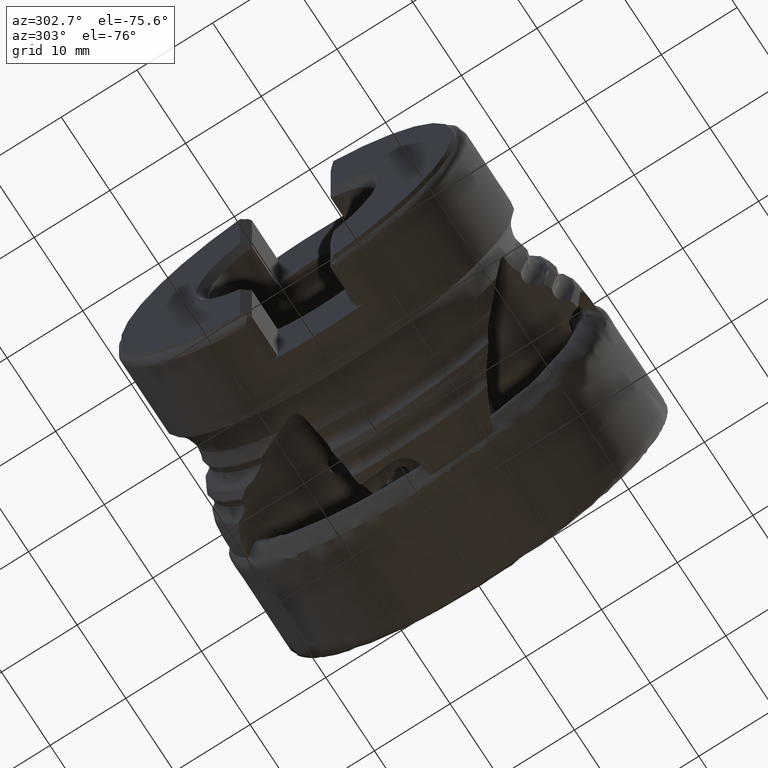
[diagram: clean part render]
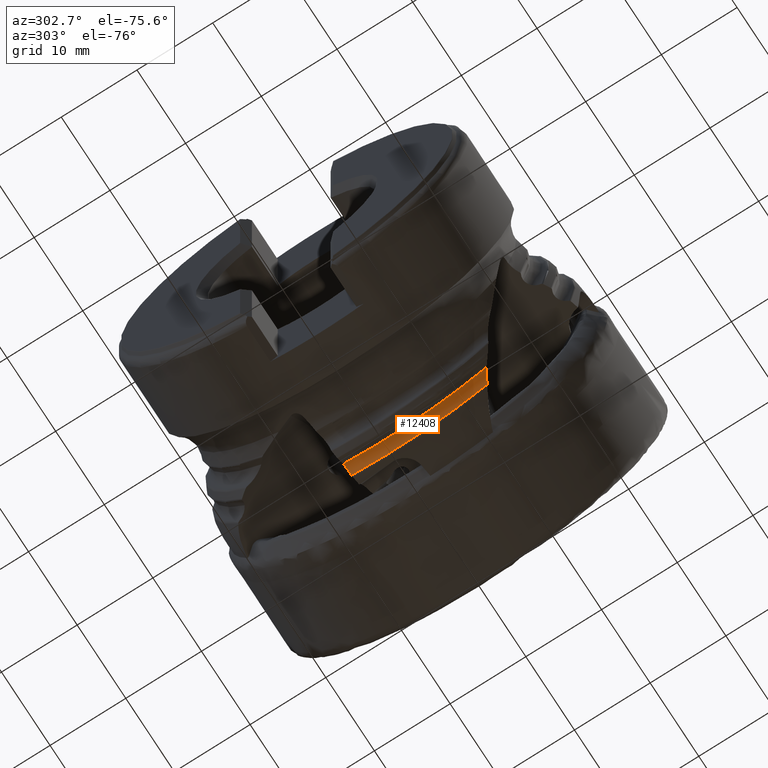
[diagram: same view with one face highlighted and labeled with its STEP entity id]
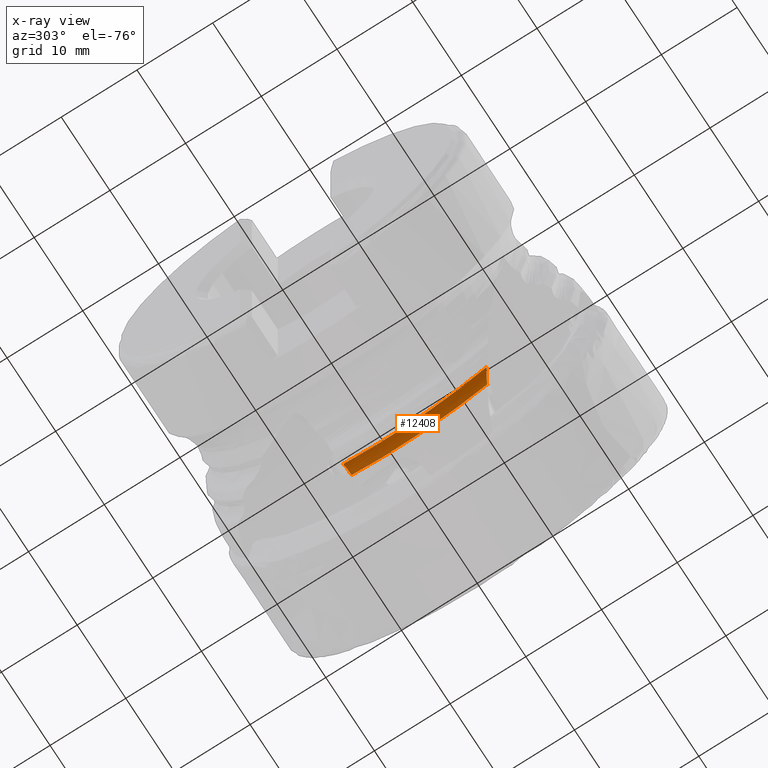
[diagram: x-ray of the same camera — body ghosted, the highlighted face saturated]
A machine part, auxiliary view. The second image highlights one B-rep face of the part: STEP entity #12408.
The next image is the same camera in x-ray: the body ghosted, the highlighted face saturated — about 0% of this face is hidden behind the body in this view.
In plain terms, the highlighted toroidal blend (fillet) surface has major radius 24.4311 mm and minor (blend) radius 1.5 mm.
Its self-contained STEP definition (entity closure, byte-faithful):
#34 = CARTESIAN_POINT ( 'NONE',  ( -17.64871734486357000, 5.545549846723024400, -22.68360924563289800 ) ) ;
#138 = ORIENTED_EDGE ( 'NONE', *, *, #7998, .T. ) ;
#525 = FACE_OUTER_BOUND ( 'NONE', #14426, .T. ) ;
#609 = EDGE_CURVE ( 'NONE', #9196, #8898, #747, .T. ) ;
#694 = CARTESIAN_POINT ( 'NONE',  ( -17.66694066933377600, -12.59899555688659900, -19.64042197951494400 ) ) ;
#747 = B_SPLINE_CURVE_WITH_KNOTS ( 'NONE', 3,
 ( #12822, #15208, #15266, #34, #9370, #10548, #8155, #4604, #10658, #12986 ),
 .UNSPECIFIED., .F., .F.,
 ( 4, 2, 2, 2, 4 ),
 ( 5.056103407659025500E-007, 0.0004455643795001811900, 0.0008906231486595964600, 0.001335681917819011600, 0.001780740686978426900 ),
 .UNSPECIFIED. ) ;
#794 = CARTESIAN_POINT ( 'NONE',  ( -18.69999999999873100, 5.720154146975390000, -22.20617876117489700 ) ) ;
#1318 = CARTESIAN_POINT ( 'NONE',  ( -17.32900065906586200, -12.44568609484302300, -20.31297274182270100 ) ) ;
#3284 = CARTESIAN_POINT ( 'NONE',  ( -18.14447209043212800, -12.87204994323813200, -19.09811805413203700 ) ) ;
#3347 = B_SPLINE_CURVE_WITH_KNOTS ( 'NONE', 3,
 ( #7629, #6547, #7735, #694, #13368, #5548, #3284, #6268, #15217, #12517 ),
 .UNSPECIFIED., .F., .F.,
 ( 4, 2, 2, 2, 4 ),
 ( 6.018687924099698600E-007, 0.0005766882887028883200, 0.001152774708613366600, 0.001728861128523844900, 0.002304947548434323000 ),
 .UNSPECIFIED. ) ;
#3669 = ORIENTED_EDGE ( 'NONE', *, *, #609, .F. ) ;
#4057 = DIRECTION ( 'NONE',  ( 0.0000000000000000000, 0.0000000000000000000, 1.000000000000000000 ) ) ;
#4389 = TOROIDAL_SURFACE ( 'NONE', #13908, 24.43108236954049800, 1.500000000000004000 ) ;
#4604 = CARTESIAN_POINT ( 'NONE',  ( -18.40624647489306700, 5.671365528189374700, -22.24140569522706200 ) ) ;
#4617 = AXIS2_PLACEMENT_3D ( 'NONE', #6195, #10969, #6295 ) ;
#4697 = DIRECTION ( 'NONE',  ( 0.0000000000000000000, 0.0000000000000000000, 1.000000000000000000 ) ) ;
#4771 = ORIENTED_EDGE ( 'NONE', *, *, #7839, .T. ) ;
#4870 = EDGE_CURVE ( 'NONE', #8898, #14733, #5126, .T. ) ;
#5126 = CIRCLE ( 'NONE', #12264, 22.93108236954049400 ) ;
#5548 = CARTESIAN_POINT ( 'NONE',  ( -18.01501552138784800, -12.79392034543334400, -19.22094782002543000 ) ) ;
#6195 = CARTESIAN_POINT ( 'NONE',  ( -17.32900065906615700, 0.0000000000000000000, 0.0000000000000000000 ) ) ;
#6268 = CARTESIAN_POINT ( 'NONE',  ( -18.41490900199102000, -13.04466381794205000, -18.88477321939152300 ) ) ;
#6295 = DIRECTION ( 'NONE',  ( 0.0000000000000000000, 0.0000000000000000000, 1.000000000000000000 ) ) ;
#6472 = DIRECTION ( 'NONE',  ( -1.000000000000000000, -0.0000000000000000000, -0.0000000000000000000 ) ) ;
#6547 = CARTESIAN_POINT ( 'NONE',  ( -17.39283097676190300, -12.46811622330316500, -20.13058787339874600 ) ) ;
#7248 = VERTEX_POINT ( 'NONE', #1318 ) ;
#7629 = CARTESIAN_POINT ( 'NONE',  ( -17.32900065906586200, -12.44568609484302300, -20.31297274182270100 ) ) ;
#7735 = CARTESIAN_POINT ( 'NONE',  ( -17.47480826050290800, -12.50418215021445300, -19.96064305790462300 ) ) ;
#7839 = EDGE_CURVE ( 'NONE', #9196, #7248, #13557, .T. ) ;
#7998 = EDGE_CURVE ( 'NONE', #7248, #14733, #3347, .T. ) ;
#8155 = CARTESIAN_POINT ( 'NONE',  ( -18.12990820145382300, 5.625469354946981000, -22.33875268957437000 ) ) ;
#8898 = VERTEX_POINT ( 'NONE', #794 ) ;
#9196 = VERTEX_POINT ( 'NONE', #9557 ) ;
#9221 = CARTESIAN_POINT ( 'NONE',  ( -18.70000000000000300, 0.0000000000000000000, 0.0000000000000000000 ) ) ;
#9370 = CARTESIAN_POINT ( 'NONE',  ( -17.75740839572208400, 5.563602008799652100, -22.58022951433073500 ) ) ;
#9557 = CARTESIAN_POINT ( 'NONE',  ( -17.32900065906582700, 5.492449086494518800, -23.18070247023739600 ) ) ;
#10548 = CARTESIAN_POINT ( 'NONE',  ( -17.99648404346067900, 5.603309347237011000, -22.40869984622822700 ) ) ;
#10593 = DIRECTION ( 'NONE',  ( -1.000000000000000000, -0.0000000000000000000, -0.0000000000000000000 ) ) ;
#10658 = CARTESIAN_POINT ( 'NONE',  ( -18.55337007814726700, 5.695800834594673600, -22.21245200171874500 ) ) ;
#10969 = DIRECTION ( 'NONE',  ( -1.000000000000000000, -0.0000000000000000000, -0.0000000000000000000 ) ) ;
#11791 = ORIENTED_EDGE ( 'NONE', *, *, #4870, .F. ) ;
#12264 = AXIS2_PLACEMENT_3D ( 'NONE', #12274, #6472, #4057 ) ;
#12274 = CARTESIAN_POINT ( 'NONE',  ( -18.70000000000000300, 0.0000000000000000000, 0.0000000000000000000 ) ) ;
#12408 = ADVANCED_FACE ( 'NONE', ( #525 ), #4389, .F. ) ;
#12517 = CARTESIAN_POINT ( 'NONE',  ( -18.69999999999999600, -13.24097149123891400, -18.72194468015674200 ) ) ;
#12822 = CARTESIAN_POINT ( 'NONE',  ( -17.32900065906582700, 5.492449086494518800, -23.18070247023739600 ) ) ;
#12986 = CARTESIAN_POINT ( 'NONE',  ( -18.69999999999873100, 5.720154146975390000, -22.20617876117489700 ) ) ;
#13368 = CARTESIAN_POINT ( 'NONE',  ( -17.77742451821916300, -12.65806259205279500, -19.49073326768173000 ) ) ;
#13419 = CARTESIAN_POINT ( 'NONE',  ( -18.69999999999999600, -13.24097149123891400, -18.72194468015674200 ) ) ;
#13557 = CIRCLE ( 'NONE', #4617, 23.82250960712182700 ) ;
#13908 = AXIS2_PLACEMENT_3D ( 'NONE', #9221, #10593, #4697 ) ;
#14426 = EDGE_LOOP ( 'NONE', ( #11791, #3669, #4771, #138 ) ) ;
#14733 = VERTEX_POINT ( 'NONE', #13419 ) ;
#15208 = CARTESIAN_POINT ( 'NONE',  ( -17.38770333229419800, 5.502198832799106900, -23.04248482585772700 ) ) ;
#15217 = CARTESIAN_POINT ( 'NONE',  ( -18.55498465263782700, -13.13846405592235200, -18.79444238548858000 ) ) ;
#15266 = CARTESIAN_POINT ( 'NONE',  ( -17.46361911144174800, 5.514807450882384100, -22.91557499911246200 ) ) ;